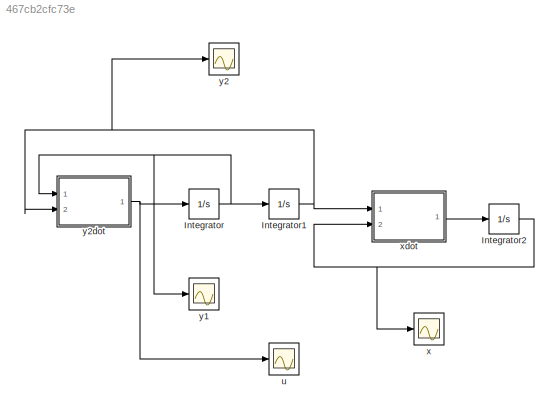
MODEL slx_467cb2cfc73e
KIND model
BLOCK [Integrator] Integrator
  InitialCondition = 2.176
  Ports = [1, 1]
BLOCK [Integrator] Integrator1
  InitialCondition = 2.176
  Ports = [1, 1]
BLOCK [Integrator] Integrator2
  InitialCondition = 2.176
  Ports = [1, 1]
BLOCK [Scope] u
  DataFormat = StructureWithTime
  Floating = off
  NumInputPorts = 1
  Ports = [1]
  SampleTime = 0
  SaveName = ScopeData3
  ShowLegends = off
  YMax = 0.1
  YMin = -0.2
BLOCK [Scope] x
  DataFormat = StructureWithTime
  Floating = off
  NumInputPorts = 1
  Ports = [1]
  SampleTime = 0
  SaveName = ScopeData2
  ShowLegends = off
  YMax = 1.5
  YMin = -0
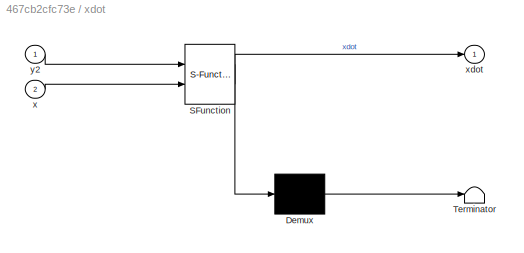
BLOCK [SubSystem] xdot
  ErrorFcn = Stateflow.Translate.translate
  FunctionWithSeparateData = off
  MaskHideContents = off
  MinAlgLoopOccurrences = off
  Opaque = off
  PermitHierarchicalResolution = ExplicitOnly
  Ports = [2, 1]
  PropExecContextOutsideSubsystem = off
  RTWSystemCode = Auto
  RequestExecContextInheritance = off
  SFBlockType = MATLAB Function
  TreatAsAtomicUnit = on
BLOCK [Demux] xdot/ Demux 
  Outputs = 1
  Ports = [1, 1]
BLOCK [S-Function] xdot/ SFunction 
  EnableBusSupport = on
  FunctionName = sf_sfun
  PortCounts = [2 2]
  Ports = [2, 2]
  Tag = Stateflow S-Function odev1C 2
BLOCK [Terminator] xdot/ Terminator 
BLOCK [Inport] xdot/x
  IconDisplay = Port number
  Port = 2
BLOCK [Outport] xdot/xdot
  IconDisplay = Port number
BLOCK [Inport] xdot/y2
  IconDisplay = Port number
BLOCK [Scope] y1
  DataFormat = StructureWithTime
  Floating = off
  NumInputPorts = 1
  Ports = [1]
  SampleTime = 0
  SaveName = ScopeData1
  ShowLegends = off
  YMax = 0
  YMin = -0.5
BLOCK [Scope] y2
  DataFormat = StructureWithTime
  Floating = off
  NumInputPorts = 1
  Ports = [1]
  SampleTime = 0
  ShowLegends = off
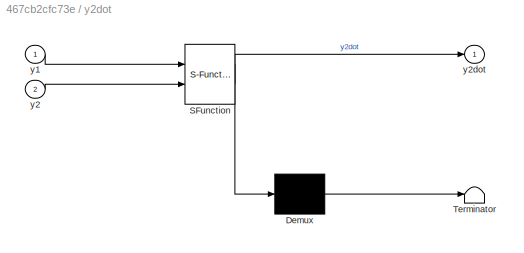
BLOCK [SubSystem] y2dot
  ErrorFcn = Stateflow.Translate.translate
  FunctionWithSeparateData = off
  MaskHideContents = off
  MinAlgLoopOccurrences = off
  Opaque = off
  PermitHierarchicalResolution = ExplicitOnly
  Ports = [2, 1]
  PropExecContextOutsideSubsystem = off
  RTWSystemCode = Auto
  RequestExecContextInheritance = off
  SFBlockType = MATLAB Function
  TreatAsAtomicUnit = on
BLOCK [Demux] y2dot/ Demux 
  Outputs = 1
  Ports = [1, 1]
BLOCK [S-Function] y2dot/ SFunction 
  EnableBusSupport = on
  FunctionName = sf_sfun
  PortCounts = [2 2]
  Ports = [2, 2]
  Tag = Stateflow S-Function odev1C 1
BLOCK [Terminator] y2dot/ Terminator 
BLOCK [Inport] y2dot/y1
  IconDisplay = Port number
BLOCK [Inport] y2dot/y2
  IconDisplay = Port number
  Port = 2
BLOCK [Outport] y2dot/y2dot
  IconDisplay = Port number
NET Integrator1:1 -> xdot:1, y2:1, y2dot:2
NET Integrator2:1 -> x:1, xdot:2
NET Integrator:1 -> Integrator1:1, y1:1, y2dot:1
LINE xdot:1 -> Integrator2:1
NET y2dot:1 -> Integrator:1, u:1
note: NET lines group one-source signal fan-out (src -> all destinations, sorted); 1:1 wires keep LINE
